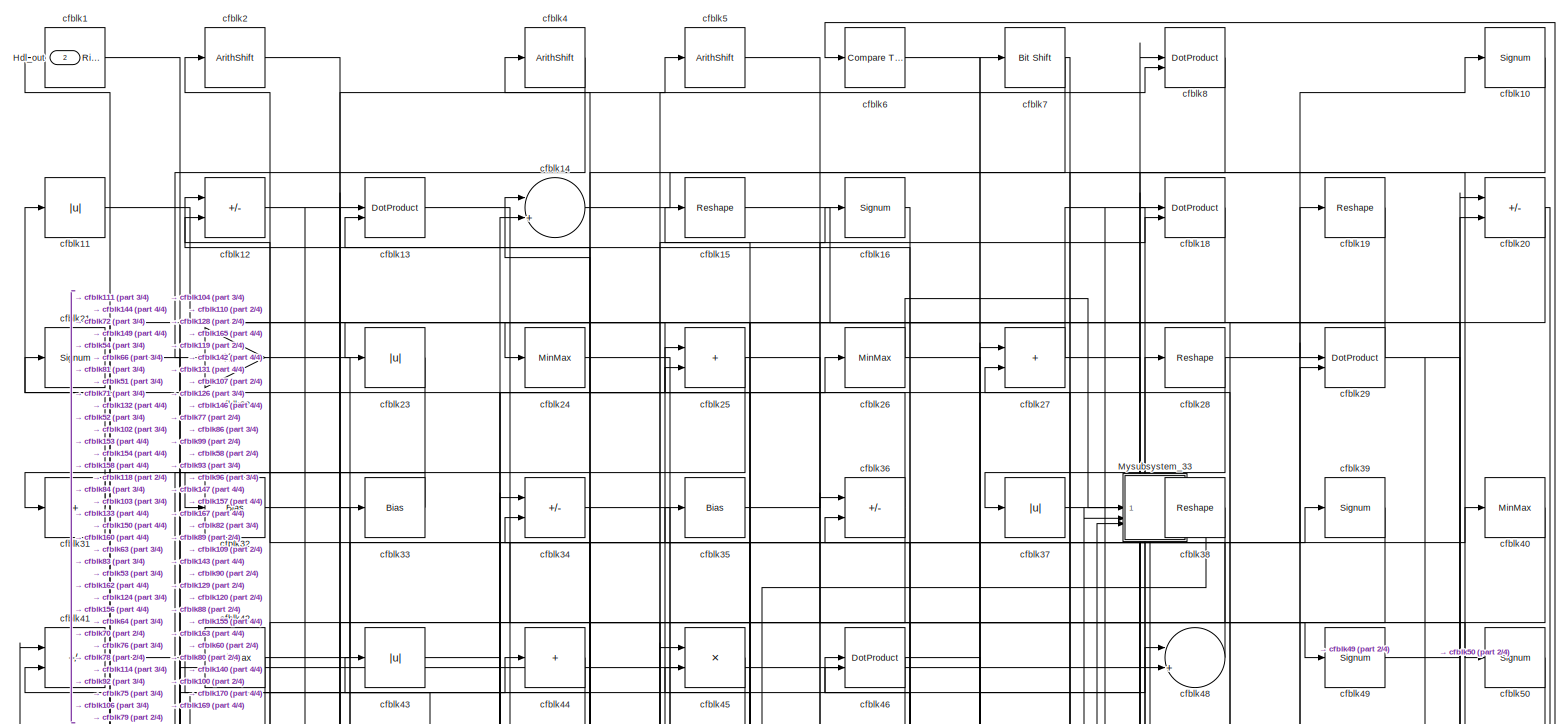
[diagram: root canvas - part 1/4, full width, top band]
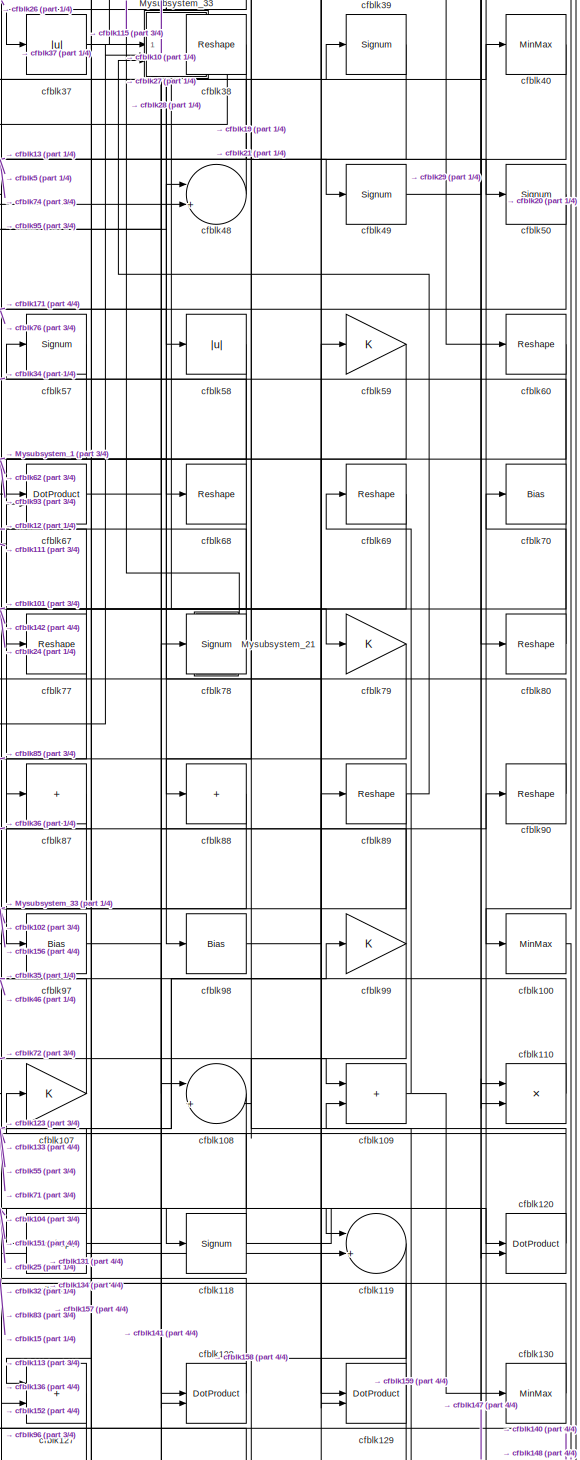
[diagram: root canvas - part 2/4, middle right region]
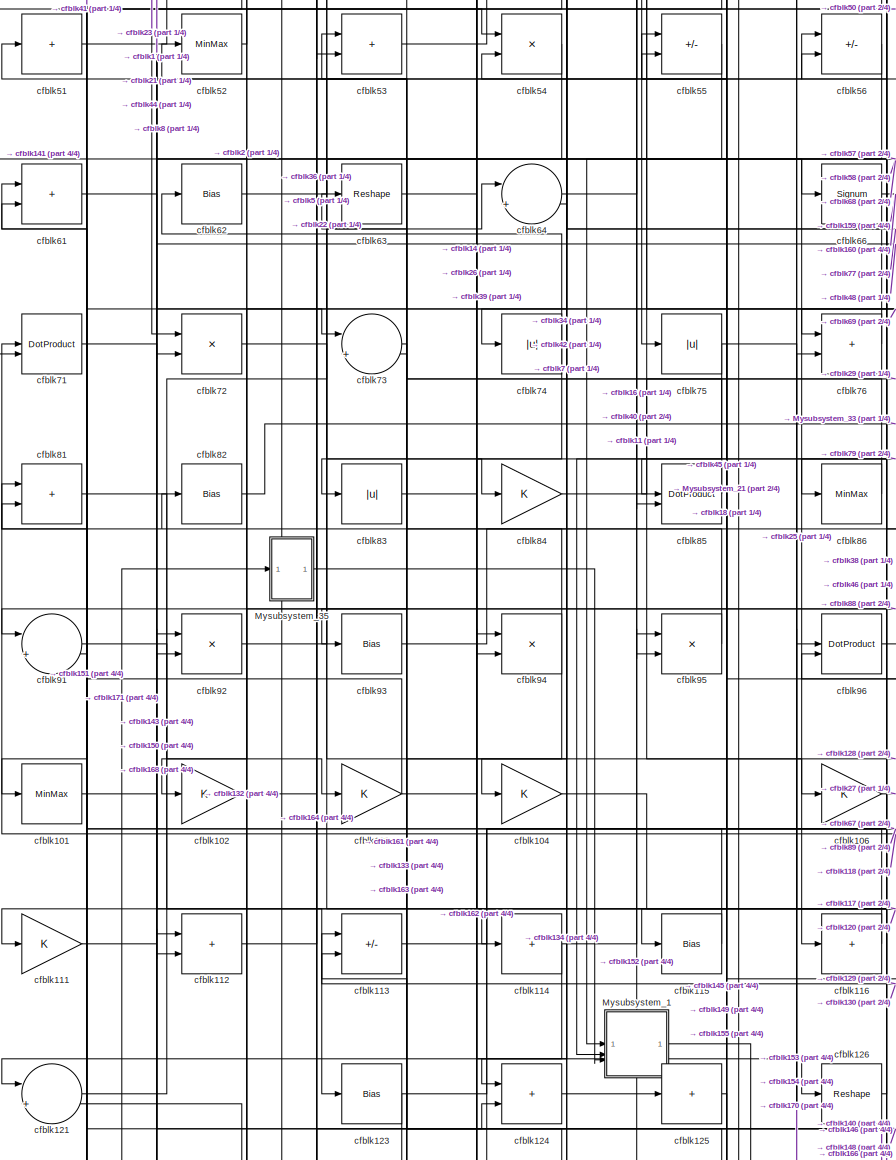
[diagram: root canvas - part 3/4, middle left region]
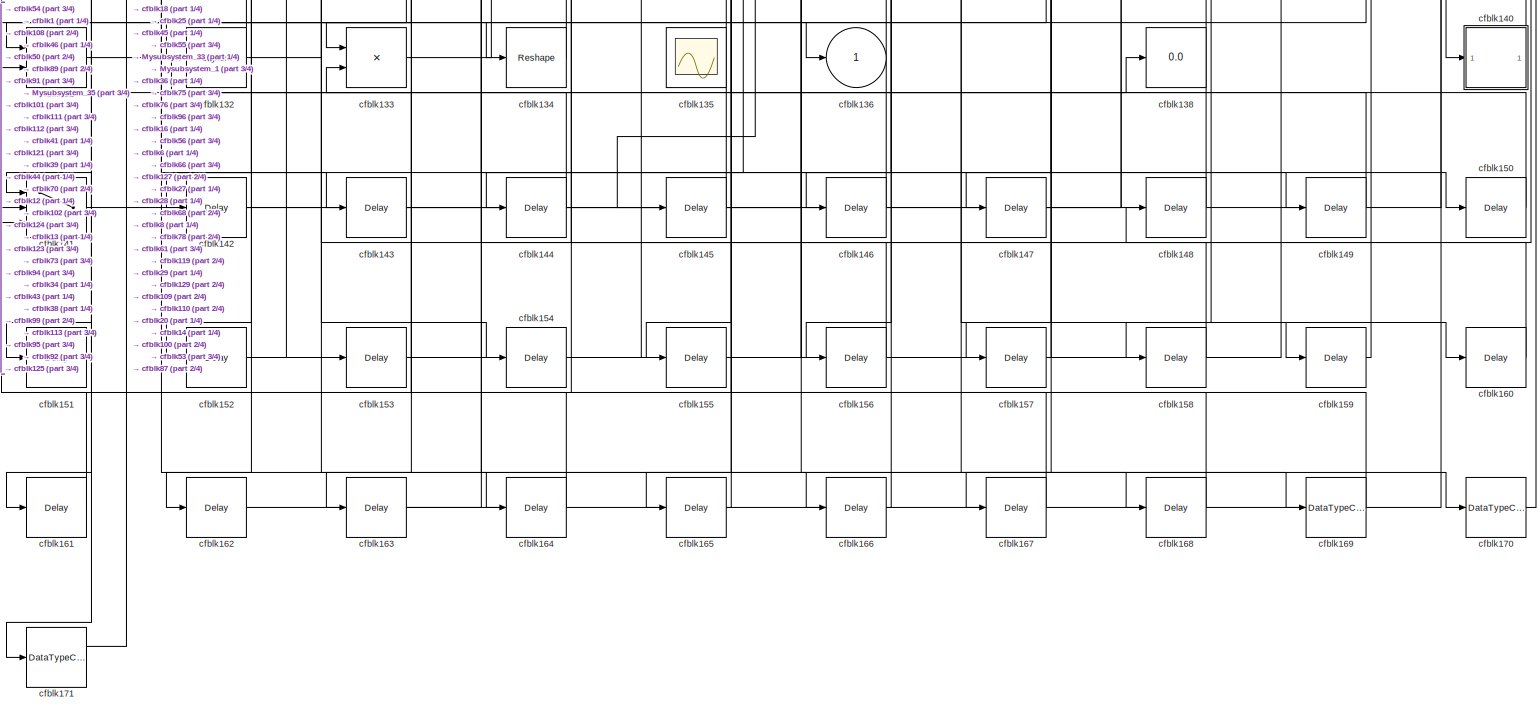
[diagram: root canvas - part 4/4, full width, bottom band]
MODEL slx_0ac0169613a3
KIND model
CONFIG AbsTol = auto
CONFIG EnableMultiTasking = off
CONFIG FixedStep = auto
CONFIG MaxStep = auto
CONFIG MinStep = auto
CONFIG RelTol = 1e-3
CONFIG SampleTimeConstraint = Unconstrained
CONFIG SolverName = VariableStepAuto
CONFIG StartTime = 0.0
CONFIG StopTime = 10.0
BLOCK [Outport] Hdl_out
  OutDataTypeStr = uint8
  Port = 2
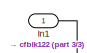
[diagram: Mysubsystem_1 - part 1/3, top right region]
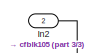
[diagram: Mysubsystem_1 - part 2/3, top right region]
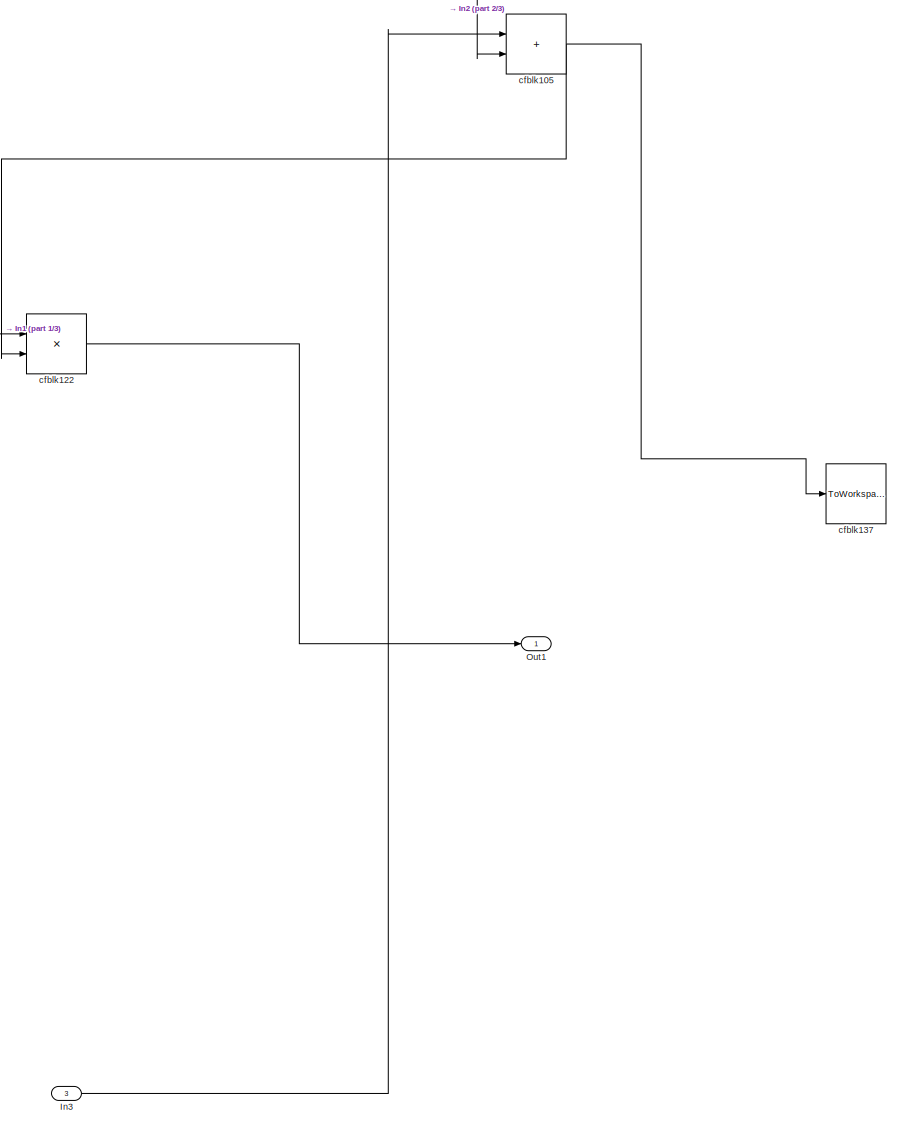
[diagram: Mysubsystem_1 - part 3/3, bottom center region]
BLOCK [SubSystem] Mysubsystem_1
  RTWFcnName = Mysubsystem_1
  RTWFcnNameOpts = User specified
  RTWFileNameOpts = Use function name
  RTWSystemCode = Reusable function
  TreatAsAtomicUnit = on
BLOCK [Inport] Mysubsystem_1/In1
BLOCK [Inport] Mysubsystem_1/In2
  Port = 2
BLOCK [Inport] Mysubsystem_1/In3
  Port = 3
BLOCK [Outport] Mysubsystem_1/Out1
BLOCK [Sum] Mysubsystem_1/cfblk105
  IconShape = rectangular
BLOCK [Product] Mysubsystem_1/cfblk122
  Inputs = */
  RndMeth = Zero
  SaturateOnIntegerOverflow = on
BLOCK [ToWorkspace] Mysubsystem_1/cfblk137
  MaxDataPoints = inf
  SampleTime = -1
  SaveFormat = Timeseries
  VariableName = simout
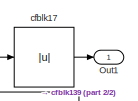
[diagram: Mysubsystem_21 - part 1/2, top left region]
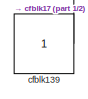
[diagram: Mysubsystem_21 - part 2/2, bottom right region]
BLOCK [SubSystem] Mysubsystem_21
  RTWFcnName = Mysubsystem_21
  RTWFcnNameOpts = User specified
  RTWFileNameOpts = Use function name
  RTWSystemCode = Reusable function
  TreatAsAtomicUnit = on
BLOCK [Outport] Mysubsystem_21/Out1
BLOCK [Constant] Mysubsystem_21/cfblk139
  SampleTime = -1
BLOCK [Abs] Mysubsystem_21/cfblk17
  SaturateOnIntegerOverflow = off
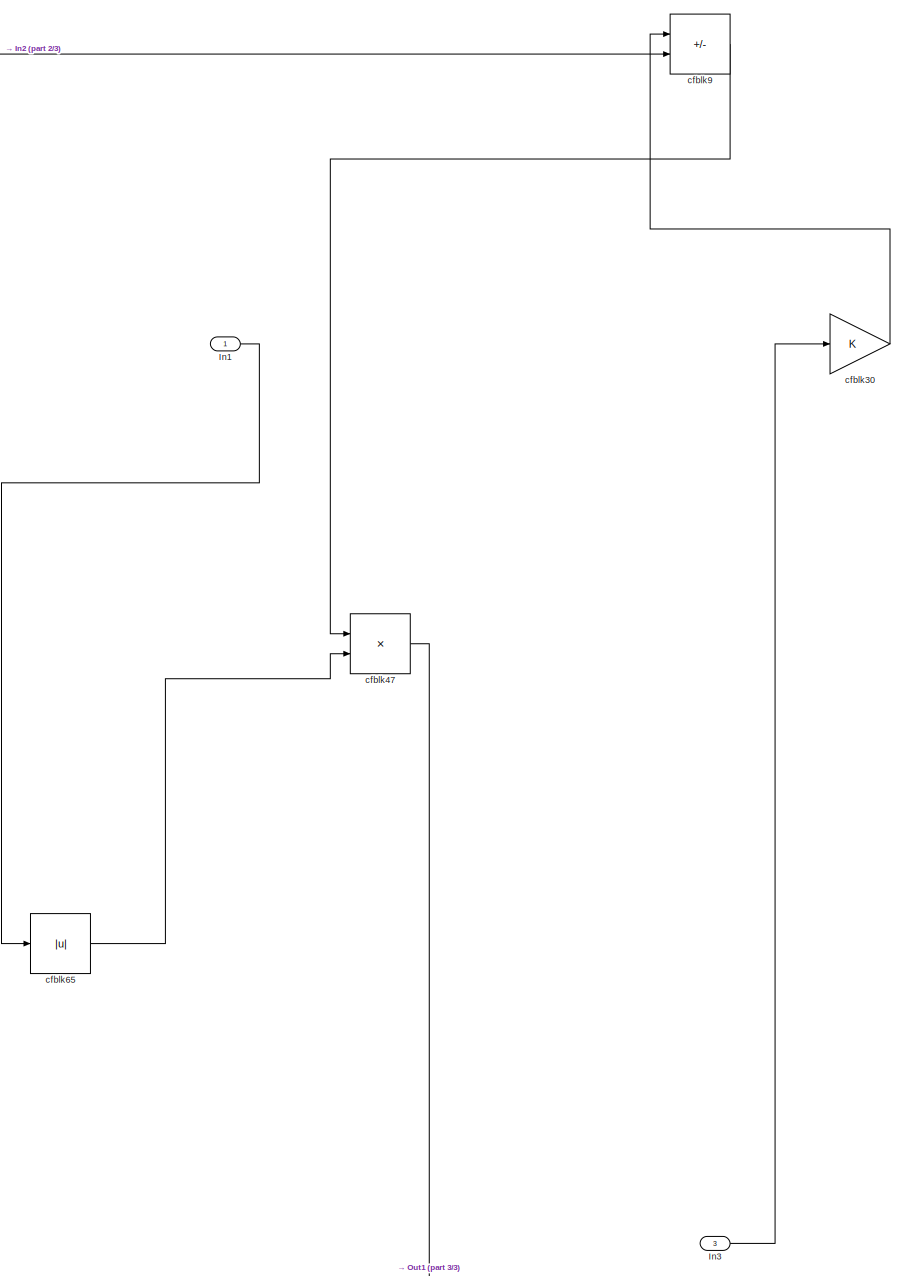
[diagram: Mysubsystem_33 - part 1/3, top center region]
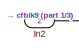
[diagram: Mysubsystem_33 - part 2/3, middle left region]
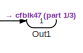
[diagram: Mysubsystem_33 - part 3/3, bottom left region]
BLOCK [SubSystem] Mysubsystem_33
  RTWFcnName = Mysubsystem_33
  RTWFcnNameOpts = User specified
  RTWFileNameOpts = Use function name
  RTWSystemCode = Reusable function
  TreatAsAtomicUnit = on
BLOCK [Inport] Mysubsystem_33/In1
BLOCK [Inport] Mysubsystem_33/In2
  Port = 2
BLOCK [Inport] Mysubsystem_33/In3
  Port = 3
BLOCK [Outport] Mysubsystem_33/Out1
BLOCK [Gain] Mysubsystem_33/cfblk30
BLOCK [Product] Mysubsystem_33/cfblk47
  Inputs = */
  RndMeth = Zero
  SaturateOnIntegerOverflow = on
BLOCK [Abs] Mysubsystem_33/cfblk65
  SaturateOnIntegerOverflow = off
BLOCK [Sum] Mysubsystem_33/cfblk9
  IconShape = rectangular
  Inputs = +-
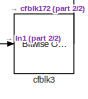
[diagram: Mysubsystem_35 - part 1/2, top center region]
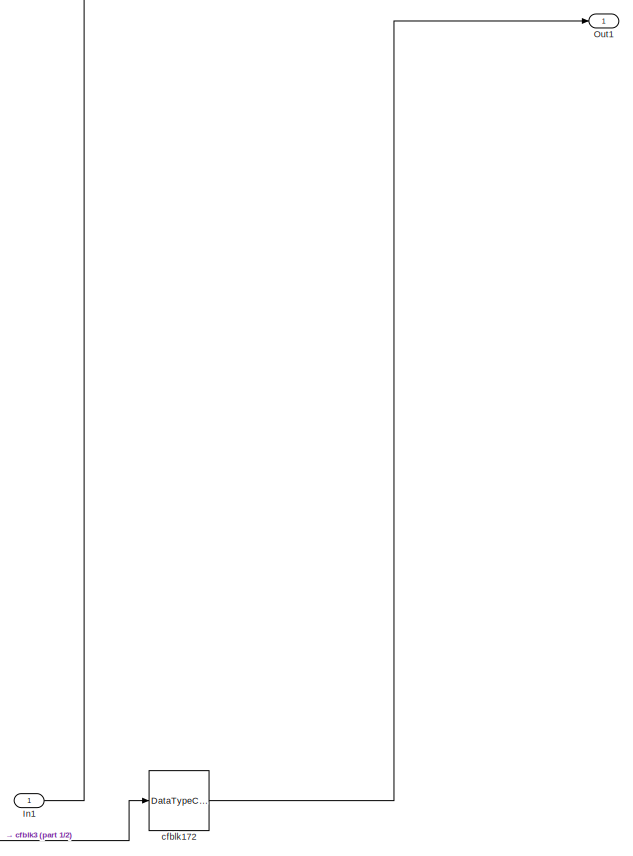
[diagram: Mysubsystem_35 - part 2/2, full width, bottom band]
BLOCK [SubSystem] Mysubsystem_35
  RTWFcnName = Mysubsystem_35
  RTWFcnNameOpts = User specified
  RTWFileNameOpts = Use function name
  RTWSystemCode = Reusable function
  TreatAsAtomicUnit = on
BLOCK [Inport] Mysubsystem_35/In1
BLOCK [Outport] Mysubsystem_35/Out1
BLOCK [DataTypeConversion] Mysubsystem_35/cfblk172
  OutDataTypeStr = uint8
  RndMeth = Floor
  SaturateOnIntegerOverflow = off
BLOCK [Reference] Mysubsystem_35/cfblk3  REF=simulink/Logic and Bit
Operations/Bitwise
Operator
  LibrarySourceBlock = hdlsllib/Logic and Bit\nOperations/Bitwise\nOperator
  SourceBlock = simulink/Logic and Bit\nOperations/Bitwise\nOperator
  SourceType = Bitwise Operator
BLOCK [Reference] cfblk1  REF=hdlsllib/Logic and Bit
Operations/Detect Rise
Nonnegative
  SourceBlock = hdlsllib/Logic and Bit\nOperations/Detect Rise\nNonnegative
  SourceType = Detect Rise Nonnegative
BLOCK [Signum] cfblk10
BLOCK [MinMax] cfblk100
  OutDataTypeStr = uint8
BLOCK [MinMax] cfblk101
  OutDataTypeStr = uint8
BLOCK [Gain] cfblk102
  OutDataTypeStr = uint8
BLOCK [Gain] cfblk103
  OutDataTypeStr = uint8
BLOCK [Gain] cfblk104
  OutDataTypeStr = uint8
BLOCK [Gain] cfblk106
  OutDataTypeStr = uint8
BLOCK [Gain] cfblk107
  OutDataTypeStr = uint8
BLOCK [Sum] cfblk108
  Inputs = |++
  OutDataTypeStr = uint8
BLOCK [Sum] cfblk109
  IconShape = rectangular
  OutDataTypeStr = uint8
BLOCK [Abs] cfblk11
  OutDataTypeStr = uint8
  SaturateOnIntegerOverflow = off
BLOCK [Product] cfblk110
  Inputs = */
  OutDataTypeStr = uint8
  RndMeth = Zero
  SaturateOnIntegerOverflow = on
BLOCK [Gain] cfblk111
  OutDataTypeStr = uint8
BLOCK [Sum] cfblk112
  IconShape = rectangular
  OutDataTypeStr = uint8
BLOCK [Sum] cfblk113
  IconShape = rectangular
  Inputs = +-
  OutDataTypeStr = uint8
BLOCK [Sum] cfblk114
  IconShape = rectangular
  Inputs = +
  OutDataTypeStr = uint8
BLOCK [Bias] cfblk115
  Bias = 0.0
  SaturateOnIntegerOverflow = off
BLOCK [Sum] cfblk116
  IconShape = rectangular
  Inputs = +
  OutDataTypeStr = uint8
BLOCK [Reshape] cfblk117
BLOCK [Signum] cfblk118
BLOCK [Sum] cfblk119
  Inputs = |++
  OutDataTypeStr = uint8
BLOCK [Sum] cfblk12
  IconShape = rectangular
  Inputs = +-
  OutDataTypeStr = uint8
BLOCK [DotProduct] cfblk120
  OutDataTypeStr = uint8
BLOCK [Sum] cfblk121
  Inputs = |++
  OutDataTypeStr = uint8
BLOCK [Bias] cfblk123
  Bias = 0.0
  SaturateOnIntegerOverflow = off
BLOCK [Sum] cfblk124
  IconShape = rectangular
  OutDataTypeStr = uint8
BLOCK [Sum] cfblk125
  IconShape = rectangular
  Inputs = +
  OutDataTypeStr = uint8
BLOCK [Reshape] cfblk126
BLOCK [Sum] cfblk127
  IconShape = rectangular
  OutDataTypeStr = uint8
BLOCK [DotProduct] cfblk128
  OutDataTypeStr = uint8
BLOCK [DotProduct] cfblk129
  OutDataTypeStr = uint8
BLOCK [DotProduct] cfblk13
  OutDataTypeStr = uint8
BLOCK [MinMax] cfblk130
  OutDataTypeStr = uint8
BLOCK [Product] cfblk131
  Inputs = */
  OutDataTypeStr = uint8
  RndMeth = Zero
  SaturateOnIntegerOverflow = on
BLOCK [Signum] cfblk132
BLOCK [Product] cfblk133
  Inputs = */
  OutDataTypeStr = uint8
  RndMeth = Zero
  SaturateOnIntegerOverflow = on
BLOCK [Reshape] cfblk134
BLOCK [Scope] cfblk135
  Floating = on
  NumInputPorts = 1
  ScopeSpecificationString = Simulink.scopes.TimeScopeBlockCfg('CurrentConfiguration', extmgr.ConfigurationSet(extmgr.Configuration('Core','General UI',true,'FigureColor',[0.156862745098039 0.156862745098039 0.156862745098039]),extmgr.Configuration('Core','Source UI',true),extmgr.Configuration('Sources','WiredSimulink',true,'DataLoggingVariableName','ScopeData1','DataLoggingSaveFormat','StructureWithTime','DataLoggingLimitDat...<+2713ch>
BLOCK [Outport] cfblk136
  OutDataTypeStr = uint8
  VectorParamsAs1DForOutWhenUnconnected = off
BLOCK [Display] cfblk138
  Decimation = 1
BLOCK [Sum] cfblk14
  Inputs = |++
  OutDataTypeStr = uint8
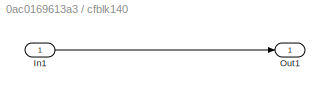
BLOCK [SubSystem] cfblk140
  LibrarySourceBlock = hdlsllib/Ports &\nSubsystems/Subsystem
BLOCK [Inport] cfblk140/In1
BLOCK [Outport] cfblk140/Out1
BLOCK [Switch] cfblk141
  InputSameDT = off
  OutDataTypeStr = uint8
  SaturateOnIntegerOverflow = off
BLOCK [Delay] cfblk142
  InputPortMap = u0
  SampleTime = 1
BLOCK [Delay] cfblk143
  InputPortMap = u0
  SampleTime = 1
BLOCK [Delay] cfblk144
  InputPortMap = u0
  SampleTime = 1
BLOCK [Delay] cfblk145
  InputPortMap = u0
  SampleTime = 1
BLOCK [Delay] cfblk146
  InputPortMap = u0
  SampleTime = 1
BLOCK [Delay] cfblk147
  InputPortMap = u0
  SampleTime = 1
BLOCK [Delay] cfblk148
  InputPortMap = u0
  SampleTime = 1
BLOCK [Delay] cfblk149
  InputPortMap = u0
  SampleTime = 1
BLOCK [Reshape] cfblk15
BLOCK [Delay] cfblk150
  InputPortMap = u0
  SampleTime = 1
BLOCK [Delay] cfblk151
  InputPortMap = u0
  SampleTime = 1
BLOCK [Delay] cfblk152
  InputPortMap = u0
  SampleTime = 1
BLOCK [Delay] cfblk153
  InputPortMap = u0
  SampleTime = 1
BLOCK [Delay] cfblk154
  InputPortMap = u0
  SampleTime = 1
BLOCK [Delay] cfblk155
  InputPortMap = u0
  SampleTime = 1
BLOCK [Delay] cfblk156
  InputPortMap = u0
  SampleTime = 1
BLOCK [Delay] cfblk157
  InputPortMap = u0
  SampleTime = 1
BLOCK [Delay] cfblk158
  InputPortMap = u0
  SampleTime = 1
BLOCK [Delay] cfblk159
  InputPortMap = u0
  SampleTime = 1
BLOCK [Signum] cfblk16
BLOCK [Delay] cfblk160
  InputPortMap = u0
  SampleTime = 1
BLOCK [Delay] cfblk161
  InputPortMap = u0
  SampleTime = 1
BLOCK [Delay] cfblk162
  InputPortMap = u0
  SampleTime = 1
BLOCK [Delay] cfblk163
  InputPortMap = u0
  SampleTime = 1
BLOCK [Delay] cfblk164
  InputPortMap = u0
  SampleTime = 1
BLOCK [Delay] cfblk165
  InputPortMap = u0
  SampleTime = 1
BLOCK [Delay] cfblk166
  InputPortMap = u0
  SampleTime = 1
BLOCK [Delay] cfblk167
  InputPortMap = u0
  SampleTime = 1
BLOCK [Delay] cfblk168
  InputPortMap = u0
  SampleTime = 1
BLOCK [DataTypeConversion] cfblk169
  OutDataTypeStr = uint8
  RndMeth = Floor
  SaturateOnIntegerOverflow = off
BLOCK [DataTypeConversion] cfblk170
  OutDataTypeStr = uint8
  RndMeth = Floor
  SaturateOnIntegerOverflow = off
BLOCK [DataTypeConversion] cfblk171
  OutDataTypeStr = uint8
  RndMeth = Floor
  SaturateOnIntegerOverflow = off
BLOCK [DotProduct] cfblk18
  OutDataTypeStr = uint8
BLOCK [Reshape] cfblk19
BLOCK [ArithShift] cfblk2
  BitShiftNumber = 8
  InputPortMap = u0
BLOCK [Sum] cfblk20
  IconShape = rectangular
  Inputs = +-
  OutDataTypeStr = uint8
BLOCK [Signum] cfblk21
BLOCK [Gain] cfblk22
  OutDataTypeStr = uint8
BLOCK [Abs] cfblk23
  OutDataTypeStr = uint8
  SaturateOnIntegerOverflow = off
BLOCK [MinMax] cfblk24
  OutDataTypeStr = uint8
BLOCK [Sum] cfblk25
  IconShape = rectangular
  OutDataTypeStr = uint8
BLOCK [MinMax] cfblk26
  OutDataTypeStr = uint8
BLOCK [Sum] cfblk27
  IconShape = rectangular
  OutDataTypeStr = uint8
BLOCK [Reshape] cfblk28
BLOCK [DotProduct] cfblk29
  OutDataTypeStr = uint8
BLOCK [Sum] cfblk31
  IconShape = rectangular
  Inputs = +
  OutDataTypeStr = uint8
BLOCK [Bias] cfblk32
  Bias = 0.0
  SaturateOnIntegerOverflow = off
BLOCK [Bias] cfblk33
  Bias = 0.0
  SaturateOnIntegerOverflow = off
BLOCK [Sum] cfblk34
  IconShape = rectangular
  Inputs = +-
  OutDataTypeStr = uint8
BLOCK [Bias] cfblk35
  Bias = 0.0
  SaturateOnIntegerOverflow = off
BLOCK [Sum] cfblk36
  IconShape = rectangular
  Inputs = +-
  OutDataTypeStr = uint8
BLOCK [Abs] cfblk37
  OutDataTypeStr = uint8
  SaturateOnIntegerOverflow = off
BLOCK [Reshape] cfblk38
BLOCK [Signum] cfblk39
BLOCK [ArithShift] cfblk4
  BitShiftNumber = 8
  InputPortMap = u0
BLOCK [MinMax] cfblk40
  OutDataTypeStr = uint8
BLOCK [Sum] cfblk41
  IconShape = rectangular
  Inputs = +-
  OutDataTypeStr = uint8
BLOCK [MinMax] cfblk42
  OutDataTypeStr = uint8
BLOCK [Abs] cfblk43
  OutDataTypeStr = uint8
  SaturateOnIntegerOverflow = off
BLOCK [Sum] cfblk44
  IconShape = rectangular
  Inputs = +
  OutDataTypeStr = uint8
BLOCK [Product] cfblk45
  Inputs = */
  OutDataTypeStr = uint8
  RndMeth = Zero
  SaturateOnIntegerOverflow = on
BLOCK [DotProduct] cfblk46
  OutDataTypeStr = uint8
BLOCK [Sum] cfblk48
  Inputs = |++
  OutDataTypeStr = uint8
BLOCK [Signum] cfblk49
BLOCK [ArithShift] cfblk5
  BitShiftNumber = 8
  InputPortMap = u0
BLOCK [Signum] cfblk50
BLOCK [Sum] cfblk51
  IconShape = rectangular
  Inputs = +
  OutDataTypeStr = uint8
BLOCK [MinMax] cfblk52
  OutDataTypeStr = uint8
BLOCK [Sum] cfblk53
  IconShape = rectangular
  OutDataTypeStr = uint8
BLOCK [Product] cfblk54
  Inputs = */
  OutDataTypeStr = uint8
  RndMeth = Zero
  SaturateOnIntegerOverflow = on
BLOCK [Sum] cfblk55
  IconShape = rectangular
  Inputs = +-
  OutDataTypeStr = uint8
BLOCK [Sum] cfblk56
  IconShape = rectangular
  Inputs = +-
  OutDataTypeStr = uint8
BLOCK [Signum] cfblk57
BLOCK [Abs] cfblk58
  OutDataTypeStr = uint8
  SaturateOnIntegerOverflow = off
BLOCK [Gain] cfblk59
  OutDataTypeStr = uint8
BLOCK [Reference] cfblk6  REF=hdlsllib/Logic and Bit
Operations/Compare
To Constant
  SourceBlock = hdlsllib/Logic and Bit\nOperations/Compare\nTo Constant
  SourceType = Compare To Constant
BLOCK [Reshape] cfblk60
BLOCK [Sum] cfblk61
  IconShape = rectangular
  OutDataTypeStr = uint8
BLOCK [Bias] cfblk62
  Bias = 0.0
  SaturateOnIntegerOverflow = off
BLOCK [Reshape] cfblk63
BLOCK [Sum] cfblk64
  Inputs = |++
  OutDataTypeStr = uint8
BLOCK [Signum] cfblk66
BLOCK [DotProduct] cfblk67
  OutDataTypeStr = uint8
BLOCK [Reshape] cfblk68
BLOCK [Reshape] cfblk69
BLOCK [Reference] cfblk7  REF=hdlsllib/Logic and Bit
Operations/Bit Shift
  SourceBlock = hdlsllib/Logic and Bit\nOperations/Bit Shift
  SourceType = Bit Shift
BLOCK [Bias] cfblk70
  Bias = 0.0
  SaturateOnIntegerOverflow = off
BLOCK [DotProduct] cfblk71
  OutDataTypeStr = uint8
BLOCK [Product] cfblk72
  Inputs = */
  OutDataTypeStr = uint8
  RndMeth = Zero
  SaturateOnIntegerOverflow = on
BLOCK [Sum] cfblk73
  Inputs = |++
  OutDataTypeStr = uint8
BLOCK [Abs] cfblk74
  OutDataTypeStr = uint8
  SaturateOnIntegerOverflow = off
BLOCK [Abs] cfblk75
  OutDataTypeStr = uint8
  SaturateOnIntegerOverflow = off
BLOCK [Sum] cfblk76
  IconShape = rectangular
  OutDataTypeStr = uint8
BLOCK [Reshape] cfblk77
BLOCK [Signum] cfblk78
BLOCK [Gain] cfblk79
  OutDataTypeStr = uint8
BLOCK [DotProduct] cfblk8
  OutDataTypeStr = uint8
BLOCK [Reshape] cfblk80
BLOCK [Sum] cfblk81
  IconShape = rectangular
  OutDataTypeStr = uint8
BLOCK [Bias] cfblk82
  Bias = 0.0
  SaturateOnIntegerOverflow = off
BLOCK [Abs] cfblk83
  OutDataTypeStr = uint8
  SaturateOnIntegerOverflow = off
BLOCK [Gain] cfblk84
  OutDataTypeStr = uint8
BLOCK [DotProduct] cfblk85
  OutDataTypeStr = uint8
BLOCK [MinMax] cfblk86
  OutDataTypeStr = uint8
BLOCK [Sum] cfblk87
  IconShape = rectangular
  Inputs = +
  OutDataTypeStr = uint8
BLOCK [Sum] cfblk88
  IconShape = rectangular
  Inputs = +
  OutDataTypeStr = uint8
BLOCK [Reshape] cfblk89
BLOCK [Reshape] cfblk90
BLOCK [Sum] cfblk91
  Inputs = |++
  OutDataTypeStr = uint8
BLOCK [Product] cfblk92
  Inputs = */
  OutDataTypeStr = uint8
  RndMeth = Zero
  SaturateOnIntegerOverflow = on
BLOCK [Bias] cfblk93
  Bias = 0.0
  SaturateOnIntegerOverflow = off
BLOCK [Product] cfblk94
  Inputs = */
  OutDataTypeStr = uint8
  RndMeth = Zero
  SaturateOnIntegerOverflow = on
BLOCK [Product] cfblk95
  Inputs = */
  OutDataTypeStr = uint8
  RndMeth = Zero
  SaturateOnIntegerOverflow = on
BLOCK [DotProduct] cfblk96
  OutDataTypeStr = uint8
BLOCK [Bias] cfblk97
  Bias = 0.0
  SaturateOnIntegerOverflow = off
BLOCK [Bias] cfblk98
  Bias = 0.0
  SaturateOnIntegerOverflow = off
BLOCK [Gain] cfblk99
  OutDataTypeStr = uint8
LINE Mysubsystem_1/In1:1 -> Mysubsystem_1/cfblk122:1
LINE Mysubsystem_1/In2:1 -> Mysubsystem_1/cfblk105:2
LINE Mysubsystem_1/In3:1 -> Mysubsystem_1/cfblk105:1
NET Mysubsystem_1/cfblk105:1 -> Mysubsystem_1/cfblk122:2, Mysubsystem_1/cfblk137:1
LINE Mysubsystem_1/cfblk122:1 -> Mysubsystem_1/Out1:1
LINE Mysubsystem_1:1 -> cfblk145:1
LINE Mysubsystem_21/cfblk139:1 -> Mysubsystem_21/cfblk17:1
LINE Mysubsystem_21/cfblk17:1 -> Mysubsystem_21/Out1:1
NET Mysubsystem_21:1 -> cfblk115:1, cfblk98:1
LINE Mysubsystem_33/In1:1 -> Mysubsystem_33/cfblk65:1
LINE Mysubsystem_33/In2:1 -> Mysubsystem_33/cfblk9:2
LINE Mysubsystem_33/In3:1 -> Mysubsystem_33/cfblk30:1
LINE Mysubsystem_33/cfblk30:1 -> Mysubsystem_33/cfblk9:1
LINE Mysubsystem_33/cfblk47:1 -> Mysubsystem_33/Out1:1
LINE Mysubsystem_33/cfblk65:1 -> Mysubsystem_33/cfblk47:2
LINE Mysubsystem_33/cfblk9:1 -> Mysubsystem_33/cfblk47:1
LINE Mysubsystem_33:1 -> cfblk144:1
LINE Mysubsystem_35/In1:1 -> Mysubsystem_35/cfblk3:1
LINE Mysubsystem_35/cfblk172:1 -> Mysubsystem_35/Out1:1
LINE Mysubsystem_35/cfblk3:1 -> Mysubsystem_35/cfblk172:1
LINE Mysubsystem_35:1 -> Mysubsystem_1:3
LINE cfblk100:1 -> cfblk148:1
LINE cfblk101:1 -> cfblk143:1
NET cfblk102:1 -> cfblk164:1, cfblk5:1
NET cfblk103:1 -> cfblk25:1, cfblk41:2
LINE cfblk104:1 -> cfblk117:1
LINE cfblk106:1 -> cfblk27:1
LINE cfblk107:1 -> cfblk46:2
LINE cfblk108:1 -> cfblk151:1
NET cfblk109:1 -> cfblk130:1, cfblk69:1
LINE cfblk10:1 -> cfblk128:2
LINE cfblk110:1 -> cfblk35:1
NET cfblk111:1 -> cfblk168:1, cfblk48:2, cfblk67:2, cfblk92:2
LINE cfblk112:1 -> cfblk56:1
LINE cfblk113:1 -> cfblk89:1
NET cfblk114:1 -> cfblk121:1, cfblk8:2
LINE cfblk115:1 -> cfblk81:1
LINE cfblk116:1 -> cfblk61:1
NET cfblk117:1 -> cfblk55:1, cfblk90:1
NET cfblk118:1 -> cfblk120:1, cfblk71:1
LINE cfblk119:1 -> cfblk158:1
LINE cfblk11:1 -> cfblk75:1
NET cfblk120:1 -> cfblk107:1, cfblk21:1
LINE cfblk121:1 -> cfblk64:1
NET cfblk123:1 -> cfblk161:1, cfblk67:1
LINE cfblk124:1 -> cfblk125:1
LINE cfblk125:1 -> cfblk155:1
LINE cfblk126:1 -> cfblk46:1
NET cfblk127:1 -> cfblk131:2, cfblk134:1
LINE cfblk128:1 -> cfblk15:1
NET cfblk129:1 -> cfblk136:1, cfblk152:1, cfblk96:2
NET cfblk12:1 -> cfblk153:1, cfblk154:1
LINE cfblk130:1 -> cfblk113:1
LINE cfblk131:1 -> cfblk138:1
NET cfblk132:1 -> cfblk121:2, cfblk124:2
NET cfblk133:1 -> cfblk166:1, cfblk38:1, cfblk99:1
LINE cfblk134:1 -> cfblk113:2
LINE cfblk13:1 -> cfblk50:1
LINE cfblk140/In1:1 -> cfblk140/Out1:1
NET cfblk140:1 -> cfblk53:1, cfblk87:1
LINE cfblk141:1 -> cfblk78:1
LINE cfblk142:1 -> cfblk36:1
LINE cfblk143:1 -> cfblk18:1
LINE cfblk144:1 -> cfblk1:1
LINE cfblk145:1 -> cfblk92:1
LINE cfblk146:1 -> cfblk73:2
LINE cfblk147:1 -> cfblk110:1
LINE cfblk148:1 -> cfblk61:2
LINE cfblk149:1 -> cfblk55:2
LINE cfblk14:1 -> cfblk140:1
LINE cfblk150:1 -> cfblk112:1
LINE cfblk151:1 -> cfblk91:2
LINE cfblk152:1 -> cfblk95:1
LINE cfblk153:1 -> cfblk96:1
LINE cfblk154:1 -> cfblk76:2
LINE cfblk155:1 -> cfblk29:2
LINE cfblk156:1 -> cfblk14:1
LINE cfblk157:1 -> cfblk27:2
LINE cfblk158:1 -> cfblk13:1
LINE cfblk159:1 -> cfblk109:2
LINE cfblk15:1 -> cfblk80:1
LINE cfblk160:1 -> cfblk34:1
LINE cfblk161:1 -> cfblk141:2
LINE cfblk162:1 -> cfblk94:1
LINE cfblk163:1 -> cfblk20:2
LINE cfblk164:1 -> cfblk133:2
LINE cfblk165:1 -> cfblk45:2
LINE cfblk166:1 -> cfblk56:2
LINE cfblk167:1 -> cfblk25:2
LINE cfblk168:1 -> cfblk54:2
NET cfblk169:1 -> cfblk41:1, cfblk43:1
LINE cfblk16:1 -> cfblk146:1
LINE cfblk170:1 -> cfblk6:1
LINE cfblk171:1 -> Mysubsystem_35:1
NET cfblk18:1 -> cfblk165:1, cfblk72:2
LINE cfblk19:1 -> cfblk88:1
LINE cfblk1:1 -> cfblk54:1
NET cfblk20:1 -> cfblk100:1, cfblk31:1
LINE cfblk21:1 -> cfblk66:1
LINE cfblk22:1 -> cfblk84:1
LINE cfblk23:1 -> cfblk72:1
LINE cfblk24:1 -> cfblk79:1
NET cfblk25:1 -> cfblk111:1, cfblk119:1
NET cfblk26:1 -> Mysubsystem_33:1, cfblk119:2
NET cfblk27:1 -> cfblk109:1, cfblk24:1
NET cfblk28:1 -> cfblk10:1, cfblk167:1
NET cfblk29:1 -> cfblk110:2, cfblk23:1, cfblk60:1
LINE cfblk2:1 -> cfblk33:1
LINE cfblk31:1 -> cfblk11:1
LINE cfblk32:1 -> cfblk118:1
LINE cfblk33:1 -> cfblk32:1
NET cfblk34:1 -> cfblk106:1, cfblk124:1
LINE cfblk35:1 -> cfblk18:2
NET cfblk36:1 -> cfblk4:1, cfblk53:2
LINE cfblk37:1 -> cfblk129:1
LINE cfblk38:1 -> cfblk86:1
LINE cfblk39:1 -> cfblk132:1
NET cfblk40:1 -> cfblk74:1, cfblk95:2
LINE cfblk41:1 -> cfblk149:1
NET cfblk42:1 -> cfblk19:1, cfblk71:2
LINE cfblk43:1 -> cfblk150:1
LINE cfblk44:1 -> cfblk162:1
LINE cfblk45:1 -> cfblk104:1
NET cfblk46:1 -> cfblk131:1, cfblk58:1
LINE cfblk48:1 -> cfblk12:2
LINE cfblk49:1 -> cfblk20:1
LINE cfblk4:1 -> cfblk22:1
NET cfblk50:1 -> cfblk171:1, cfblk76:1
LINE cfblk51:1 -> cfblk8:1
LINE cfblk52:1 -> cfblk2:1
LINE cfblk53:1 -> cfblk39:1
NET cfblk54:1 -> cfblk141:3, cfblk91:1
LINE cfblk55:1 -> cfblk112:2
NET cfblk56:1 -> cfblk116:1, cfblk85:2
LINE cfblk57:1 -> Mysubsystem_1:1
NET cfblk58:1 -> cfblk93:1, cfblk97:1
NET cfblk59:1 -> cfblk127:1, cfblk129:2
LINE cfblk5:1 -> cfblk49:1
LINE cfblk60:1 -> cfblk127:2
LINE cfblk61:1 -> cfblk73:1
LINE cfblk62:1 -> cfblk68:1
NET cfblk63:1 -> cfblk126:1, cfblk14:2
LINE cfblk64:1 -> cfblk16:1
NET cfblk66:1 -> cfblk159:1, cfblk160:1
LINE cfblk67:1 -> cfblk40:1
NET cfblk68:1 -> cfblk157:1, cfblk57:1, cfblk77:1
LINE cfblk69:1 -> cfblk101:1
LINE cfblk6:1 -> cfblk169:1
NET cfblk70:1 -> cfblk142:1, cfblk34:2
LINE cfblk71:1 -> cfblk114:1
LINE cfblk72:1 -> cfblk128:1
LINE cfblk73:1 -> cfblk133:1
NET cfblk74:1 -> cfblk62:1, cfblk83:1
NET cfblk75:1 -> cfblk170:1, cfblk94:2
LINE cfblk76:1 -> cfblk42:1
NET cfblk77:1 -> cfblk12:1, cfblk85:1
LINE cfblk78:1 -> cfblk13:2
LINE cfblk79:1 -> Mysubsystem_1:2
NET cfblk7:1 -> cfblk37:1, cfblk64:2
LINE cfblk80:1 -> cfblk70:1
NET cfblk81:1 -> cfblk123:1, cfblk44:1
LINE cfblk82:1 -> Mysubsystem_33:2
NET cfblk83:1 -> cfblk120:2, cfblk26:1
LINE cfblk84:1 -> cfblk29:1
LINE cfblk85:1 -> cfblk51:1
LINE cfblk86:1 -> cfblk52:1
LINE cfblk87:1 -> cfblk156:1
LINE cfblk88:1 -> cfblk102:1
NET cfblk89:1 -> Mysubsystem_33:3, cfblk141:1
LINE cfblk8:1 -> cfblk147:1
LINE cfblk90:1 -> cfblk28:1
LINE cfblk91:1 -> cfblk103:1
LINE cfblk92:1 -> cfblk45:1
LINE cfblk93:1 -> cfblk7:1
NET cfblk94:1 -> cfblk163:1, cfblk81:2, cfblk82:1
LINE cfblk95:1 -> cfblk63:1
LINE cfblk96:1 -> cfblk48:1
LINE cfblk97:1 -> cfblk108:1
LINE cfblk98:1 -> cfblk59:1
NET cfblk99:1 -> cfblk108:2, cfblk36:2
note: NET lines group one-source signal fan-out (src -> all destinations, sorted); 1:1 wires keep LINE
